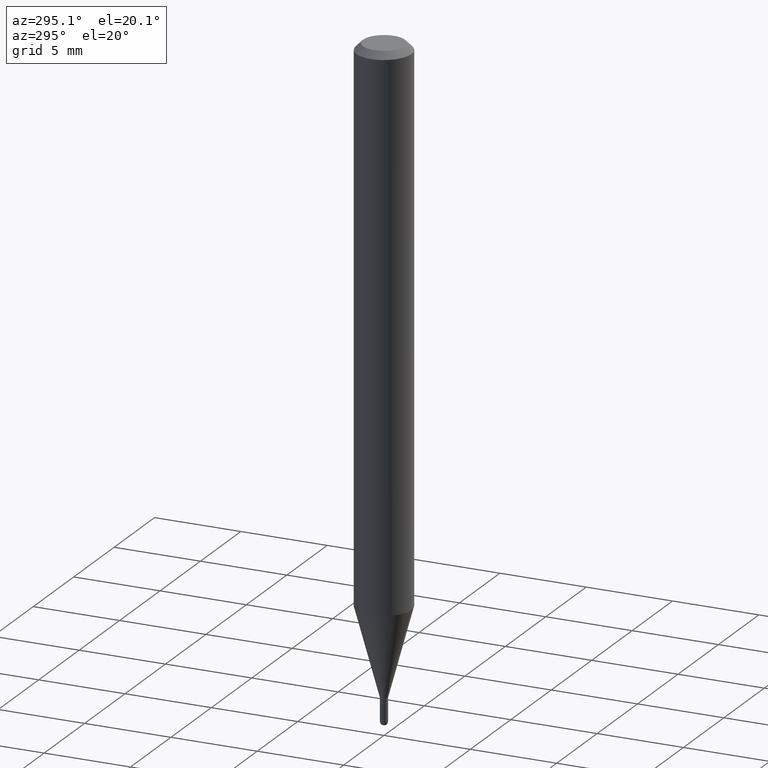
[diagram: clean part render]
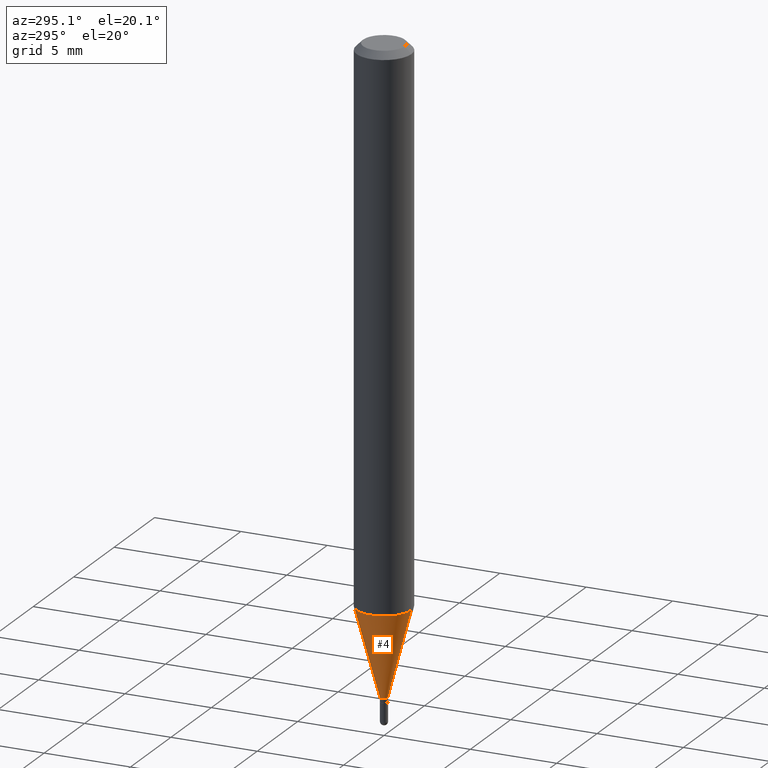
[diagram: same view with one face highlighted and labeled with its STEP entity id]
A machine part, auxiliary view. The second image highlights one B-rep face of the part: STEP entity #4.
In plain terms, the highlighted conical surface has half-angle 15 deg.
Its self-contained STEP definition (entity closure, byte-faithful):
#4 = ADVANCED_FACE ( 'NONE', ( #253 ), #439, .T. ) ;
#6 = VECTOR ( 'NONE', #143, 39.37007874015748854 ) ;
#14 = VECTOR ( 'NONE', #458, 39.37007874015748854 ) ;
#22 = CARTESIAN_POINT ( 'NONE',  ( -5.935518276029754545E-17, -0.008500000000004949777, -1.439000000000000057 ) ) ;
#33 = AXIS2_PLACEMENT_3D ( 'NONE', #247, #335, #488 ) ;
#35 = AXIS2_PLACEMENT_3D ( 'NONE', #305, #469, #118 ) ;
#39 = VERTEX_POINT ( 'NONE', #287 ) ;
#53 = EDGE_LOOP ( 'NONE', ( #480, #179, #108, #220 ) ) ;
#55 = CIRCLE ( 'NONE', #486, 0.008499999999999924283 ) ;
#63 = CARTESIAN_POINT ( 'NONE',  ( 6.039613253964316839E-17, 0.008499999999994900524, -1.439000000000000057 ) ) ;
#72 = CARTESIAN_POINT ( 'NONE',  ( -4.364351673553615448E-16, -0.06250000000000432987, -1.237469256391281025 ) ) ;
#83 = CIRCLE ( 'NONE', #35, 0.06250000000000000000 ) ;
#102 = LINE ( 'NONE', #22, #14 ) ;
#108 = ORIENTED_EDGE ( 'NONE', *, *, #259, .T. ) ;
#118 = DIRECTION ( 'NONE',  ( -6.982962677686265922E-15, -1.000000000000000000, 4.370956789862821150E-15 ) ) ;
#120 = VERTEX_POINT ( 'NONE', #184 ) ;
#143 = DIRECTION ( 'NONE',  ( 1.839019923739601893E-15, 0.2588190451025252359, 0.9659258262890670910 ) ) ;
#146 = VERTEX_POINT ( 'NONE', #72 ) ;
#150 = DIRECTION ( 'NONE',  ( -2.445459971718245083E-29, 3.491493990302560829E-15, 1.000000000000000000 ) ) ;
#155 = DIRECTION ( 'NONE',  ( -6.982962677686266711E-15, -1.000000000000000000, 0.000000000000000000 ) ) ;
#179 = ORIENTED_EDGE ( 'NONE', *, *, #403, .T. ) ;
#184 = CARTESIAN_POINT ( 'NONE',  ( 2.522426711948681826E-16, 0.008499999999994900524, -1.439000000000000057 ) ) ;
#220 = ORIENTED_EDGE ( 'NONE', *, *, #411, .F. ) ;
#223 = EDGE_CURVE ( 'NONE', #120, #39, #506, .T. ) ;
#247 = CARTESIAN_POINT ( 'NONE',  ( 3.519016899302555571E-29, -5.024259852045384731E-15, -1.439000000000000057 ) ) ;
#248 = CARTESIAN_POINT ( 'NONE',  ( -5.935518276029754545E-17, -0.008500000000004949777, -1.439000000000000057 ) ) ;
#253 = FACE_OUTER_BOUND ( 'NONE', #53, .T. ) ;
#259 = EDGE_CURVE ( 'NONE', #452, #146, #102, .T. ) ;
#287 = CARTESIAN_POINT ( 'NONE',  ( 4.440892098500927901E-16, 0.06249999999999569095, -1.237469256391281691 ) ) ;
#305 = CARTESIAN_POINT ( 'NONE',  ( 3.026181532736820880E-29, -4.320616471874337683E-15, -1.237469256391281247 ) ) ;
#335 = DIRECTION ( 'NONE',  ( -2.445459971718245083E-29, 3.491493990302560829E-15, 1.000000000000000000 ) ) ;
#349 = CARTESIAN_POINT ( 'NONE',  ( 3.519016899302555571E-29, -5.024259852045384731E-15, -1.439000000000000057 ) ) ;
#403 = EDGE_CURVE ( 'NONE', #120, #452, #55, .T. ) ;
#411 = EDGE_CURVE ( 'NONE', #39, #146, #83, .T. ) ;
#439 = CONICAL_SURFACE ( 'NONE', #33, 0.008499999999999924283, 0.2617993877991505181 ) ;
#452 = VERTEX_POINT ( 'NONE', #248 ) ;
#458 = DIRECTION ( 'NONE',  ( -1.807323732225331717E-15, -0.2588190451025184080, 0.9659258262890689783 ) ) ;
#469 = DIRECTION ( 'NONE',  ( -2.445459971718245083E-29, 3.491493990302560829E-15, 1.000000000000000000 ) ) ;
#480 = ORIENTED_EDGE ( 'NONE', *, *, #223, .F. ) ;
#486 = AXIS2_PLACEMENT_3D ( 'NONE', #349, #150, #155 ) ;
#488 = DIRECTION ( 'NONE',  ( -6.982962677686266711E-15, -1.000000000000000000, 0.000000000000000000 ) ) ;
#506 = LINE ( 'NONE', #63, #6 ) ;